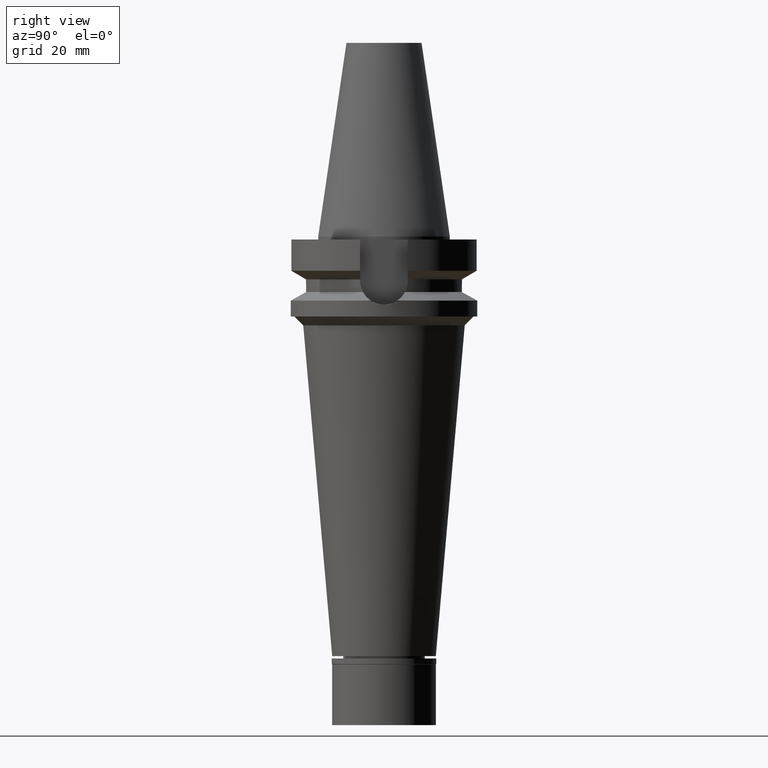
[diagram: clean part render]
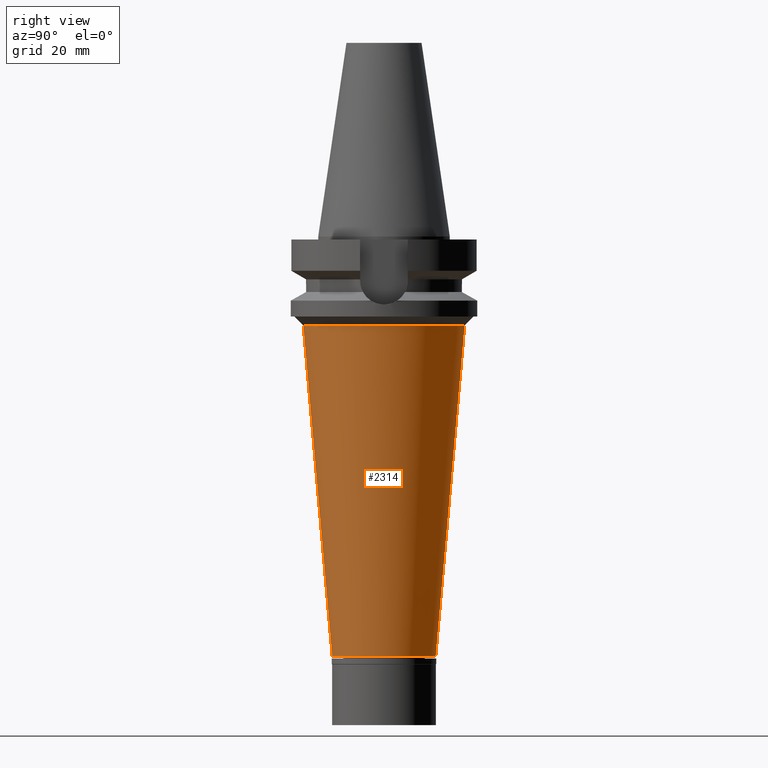
[diagram: same view with one face highlighted and labeled with its STEP entity id]
A machine part, right view. The second image highlights one B-rep face of the part: STEP entity #2314.
In plain terms, the highlighted conical surface has half-angle 5 deg.
Its self-contained STEP definition (entity closure, byte-faithful):
#43 = CARTESIAN_POINT ( 'NONE',  ( 0.0000000000000000000, -27.27248371584999731, -30.00000000000000000 ) ) ;
#95 = CIRCLE ( 'NONE', #1971, 17.50000000000000000 ) ;
#260 = EDGE_CURVE ( 'NONE', #2153, #3052, #2465, .T. ) ;
#418 = CARTESIAN_POINT ( 'NONE',  ( 0.0000000000000000000, 0.0000000000000000000, -30.00000000000000000 ) ) ;
#433 = DIRECTION ( 'NONE',  ( 0.0000000000000000000, 0.0000000000000000000, 1.000000000000000000 ) ) ;
#502 = EDGE_CURVE ( 'NONE', #3052, #2240, #95, .T. ) ;
#572 = ORIENTED_EDGE ( 'NONE', *, *, #502, .T. ) ;
#639 = CARTESIAN_POINT ( 'NONE',  ( 0.0000000000000000000, 27.27248371584999731, -30.00000000000000000 ) ) ;
#728 = EDGE_CURVE ( 'NONE', #2153, #2914, #848, .T. ) ;
#848 = CIRCLE ( 'NONE', #2524, 27.27248371583999997 ) ;
#876 = DIRECTION ( 'NONE',  ( 0.0000000000000000000, 0.0000000000000000000, 1.000000000000000000 ) ) ;
#973 = LINE ( 'NONE', #1943, #2761 ) ;
#1063 = ORIENTED_EDGE ( 'NONE', *, *, #1992, .F. ) ;
#1086 = CARTESIAN_POINT ( 'NONE',  ( 0.0000000000000000000, 0.0000000000000000000, -141.6999999999999886 ) ) ;
#1094 = ORIENTED_EDGE ( 'NONE', *, *, #728, .F. ) ;
#1110 = DIRECTION ( 'NONE',  ( 0.0000000000000000000, 1.000000000000000000, 0.0000000000000000000 ) ) ;
#1167 = DIRECTION ( 'NONE',  ( 0.0000000000000000000, -1.000000000000000000, 0.0000000000000000000 ) ) ;
#1264 = CARTESIAN_POINT ( 'NONE',  ( 0.0000000000000000000, -27.27248371584999731, -30.00000000000000000 ) ) ;
#1288 = DIRECTION ( 'NONE',  ( 0.0000000000000000000, 0.08715574274768382590, -0.9961946980917432137 ) ) ;
#1551 = CONICAL_SURFACE ( 'NONE', #1909, 22.38624185792000176, 0.08726646259969973729 ) ;
#1735 = DIRECTION ( 'NONE',  ( 0.0000000000000000000, -0.08715574274768382590, -0.9961946980917432137 ) ) ;
#1850 = DIRECTION ( 'NONE',  ( 0.0000000000000000000, -1.000000000000000000, 0.0000000000000000000 ) ) ;
#1859 = DIRECTION ( 'NONE',  ( 0.0000000000000000000, 0.0000000000000000000, 1.000000000000000000 ) ) ;
#1887 = CARTESIAN_POINT ( 'NONE',  ( 0.0000000000000000000, -17.50000000000000000, -141.6999999999999886 ) ) ;
#1909 = AXIS2_PLACEMENT_3D ( 'NONE', #2065, #1859, #1110 ) ;
#1943 = CARTESIAN_POINT ( 'NONE',  ( 0.0000000000000000000, 27.27248371584999731, -30.00000000000000000 ) ) ;
#1969 = VECTOR ( 'NONE', #1288, 1000.000000000000227 ) ;
#1971 = AXIS2_PLACEMENT_3D ( 'NONE', #1086, #876, #1850 ) ;
#1992 = EDGE_CURVE ( 'NONE', #2914, #2240, #973, .T. ) ;
#2065 = CARTESIAN_POINT ( 'NONE',  ( 0.0000000000000000000, 0.0000000000000000000, -85.84999999999999432 ) ) ;
#2096 = FACE_OUTER_BOUND ( 'NONE', #3117, .T. ) ;
#2153 = VERTEX_POINT ( 'NONE', #1264 ) ;
#2240 = VERTEX_POINT ( 'NONE', #2501 ) ;
#2314 = ADVANCED_FACE ( 'NONE', ( #2096 ), #1551, .T. ) ;
#2465 = LINE ( 'NONE', #43, #1969 ) ;
#2496 = ORIENTED_EDGE ( 'NONE', *, *, #260, .T. ) ;
#2501 = CARTESIAN_POINT ( 'NONE',  ( 0.0000000000000000000, 17.50000000000000000, -141.6999999999999886 ) ) ;
#2524 = AXIS2_PLACEMENT_3D ( 'NONE', #418, #433, #1167 ) ;
#2761 = VECTOR ( 'NONE', #1735, 1000.000000000000227 ) ;
#2914 = VERTEX_POINT ( 'NONE', #639 ) ;
#3052 = VERTEX_POINT ( 'NONE', #1887 ) ;
#3117 = EDGE_LOOP ( 'NONE', ( #1094, #2496, #572, #1063 ) ) ;